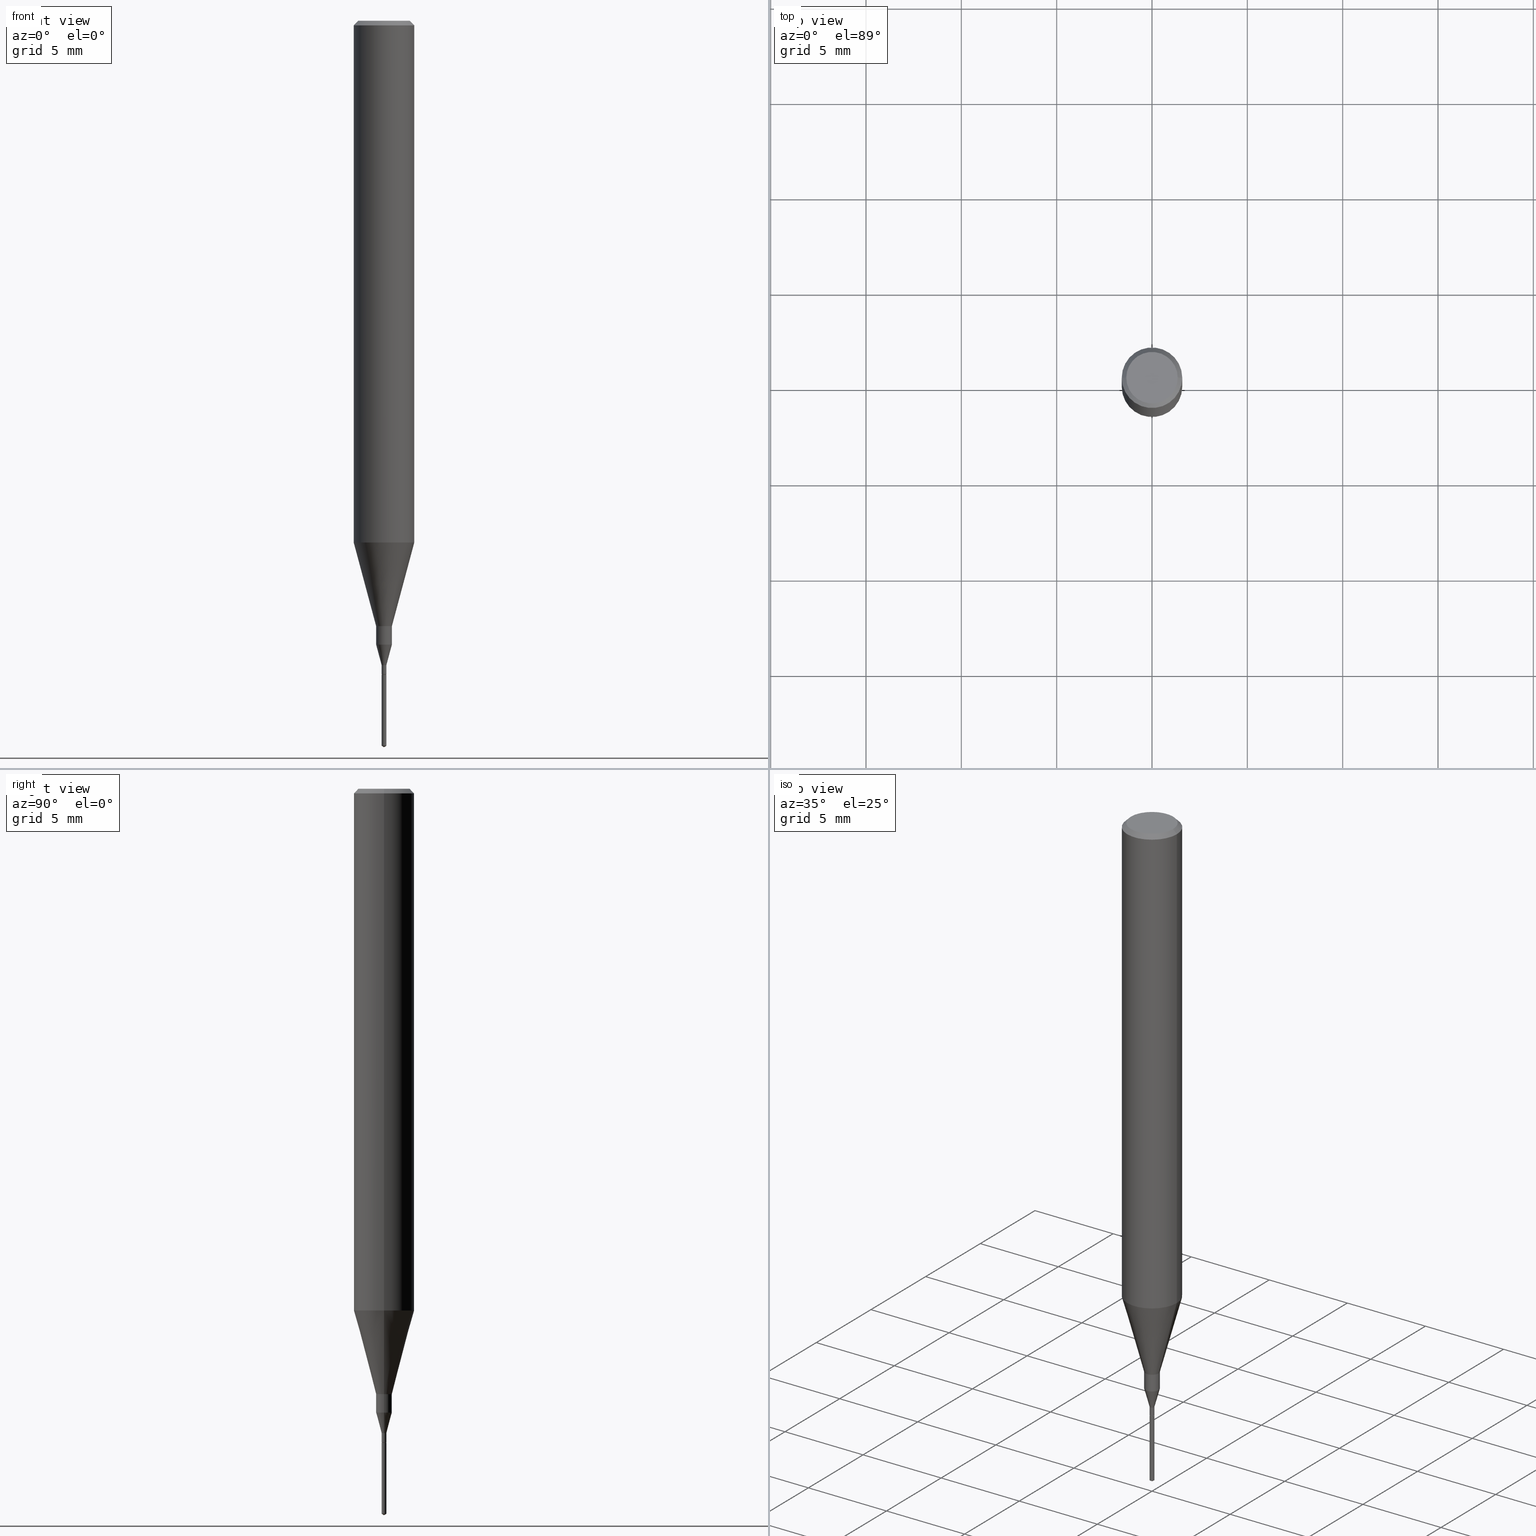
[diagram: canonical four-view strip — front | top / right | iso, engineering-drawing reading convention]
A machine part, canonical four-view strip (front | top / right | iso — engineering-drawing reading convention). The complete STEP part file that produces these views, byte-faithful:
ISO-10303-21;
HEADER;
FILE_DESCRIPTION (( 'STEP AP203' ),
    '1' );
FILE_NAME ('07114.STEP',
    '2024-04-19T13:30:05',
    ( '' ),
    ( '' ),
    'SwSTEP 2.0',
    'SolidWorks 2023',
    '' );
FILE_SCHEMA (( 'CONFIG_CONTROL_DESIGN' ));
ENDSEC;

DATA;
#1 = ORIENTED_EDGE ( 'NONE', *, *, #220, .T. ) ;
#2 = EDGE_CURVE ( 'NONE', #264, #329, #456, .T. ) ;
#3 = VERTEX_POINT ( 'NONE', #502 ) ;
#4 = CARTESIAN_POINT ( 'NONE',  ( 0.004900000000000000709, -3.421651712066270871E-17, 2.389326620140008703E-31 ) ) ;
#5 = EDGE_CURVE ( 'NONE', #267, #574, #358, .T. ) ;
#6 = FACE_OUTER_BOUND ( 'NONE', #71, .T. ) ;
#7 = CIRCLE ( 'NONE', #252, 0.004900000000000006781 ) ;
#8 = AXIS2_PLACEMENT_3D ( 'NONE', #385, #154, #187 ) ;
#9 = ADVANCED_FACE ( 'NONE', ( #288 ), #73, .T. ) ;
#10 = FACE_OUTER_BOUND ( 'NONE', #459, .T. ) ;
#11 = FACE_OUTER_BOUND ( 'NONE', #256, .T. ) ;
#12 = APPROVAL_STATUS ( 'not_yet_approved' ) ;
#13 = DIRECTION ( 'NONE',  ( -1.000000000000000000, 6.982962677686266711E-15, 0.000000000000000000 ) ) ;
#14 = SECURITY_CLASSIFICATION ( '', '', #268 ) ;
#15 = DIRECTION ( 'NONE',  ( -2.445468806185136597E-29, 3.491481338843145583E-15, 1.000000000000000000 ) ) ;
#16 = CARTESIAN_POINT ( 'NONE',  ( 3.661644357639227477E-29, -5.226024181502583306E-15, -1.497055782966765225 ) ) ;
#17 = CARTESIAN_POINT ( 'NONE',  ( 0.004399999999999999398, -4.744224843220065847E-15, -1.350000000000000089 ) ) ;
#18 = EDGE_LOOP ( 'NONE', ( #168, #505 ) ) ;
#19 = VECTOR ( 'NONE', #525, 39.37007874015748143 ) ;
#20 = APPLICATION_PROTOCOL_DEFINITION ( 'international standard', 'config_control_design', 1994, #276 ) ;
#21 = CARTESIAN_POINT ( 'NONE',  ( 3.149864632744068041E-29, -4.497171894931683975E-15, -1.288041223334093432 ) ) ;
#22 = ORIENTED_EDGE ( 'NONE', *, *, #393, .T. ) ;
#23 = EDGE_CURVE ( 'NONE', #304, #586, #7, .T. ) ;
#24 = CYLINDRICAL_SURFACE ( 'NONE', #451, 0.01624999999999999709 ) ;
#25 = VERTEX_POINT ( 'NONE', #337 ) ;
#26 = CARTESIAN_POINT ( 'NONE',  ( 3.149864632744068041E-29, -4.497171894931683975E-15, -1.288041223334093432 ) ) ;
#27 = APPROVAL_ROLE ( '' ) ;
#28 = PLANE ( 'NONE',  #491 ) ;
#29 = ORIENTED_EDGE ( 'NONE', *, *, #319, .T. ) ;
#30 = LOCAL_TIME ( 9, 30, 5.000000000000000000, #107 ) ;
#31 = CIRCLE ( 'NONE', #372, 0.01624999999999999709 ) ;
#32 = CARTESIAN_POINT ( 'NONE',  ( 2.634730117954813298E-29, -3.761696332605275695E-15, -1.077392650149939346 ) ) ;
#33 = DIRECTION ( 'NONE',  ( -2.449828643397946418E-29, 3.485237803807878340E-15, 1.000000000000000000 ) ) ;
#34 = CC_DESIGN_DATE_AND_TIME_ASSIGNMENT ( #324, #571, ( #14 ) ) ;
#35 = EDGE_LOOP ( 'NONE', ( #172, #223, #463 ) ) ;
#36 = ADVANCED_FACE ( 'NONE', ( #553 ), #147, .T. ) ;
#37 = APPROVAL_PERSON_ORGANIZATION ( #132, #225, #174 ) ;
#38 = CARTESIAN_POINT ( 'NONE',  ( 0.000000000000000000, 0.000000000000000000, 0.000000000000000000 ) ) ;
#39 = PERSON_AND_ORGANIZATION_ROLE ( 'classification_officer' ) ;
#40 = AXIS2_PLACEMENT_3D ( 'NONE', #433, #527, #70 ) ;
#41 = ORIENTED_EDGE ( 'NONE', *, *, #340, .T. ) ;
#42 = ORIENTED_EDGE ( 'NONE', *, *, #425, .F. ) ;
#43 = EDGE_LOOP ( 'NONE', ( #353, #577, #522, #543 ) ) ;
#44 = CARTESIAN_POINT ( 'NONE',  ( 3.481659405227790456E-17, 0.004899999999995284863, -1.350000000000000089 ) ) ;
#45 = CLOSED_SHELL ( 'NONE', ( #410, #125, #98, #176, #369 ) ) ;
#46 = VECTOR ( 'NONE', #462, 39.37007874015747433 ) ;
#47 = EDGE_LOOP ( 'NONE', ( #94, #442, #295, #315 ) ) ;
#48 = CC_DESIGN_PERSON_AND_ORGANIZATION_ASSIGNMENT ( #519, #192, ( #375 ) ) ;
#49 = CARTESIAN_POINT ( 'NONE',  ( 3.056836007731421306E-29, -4.364351673553932471E-15, -1.250000000000000000 ) ) ;
#50 = VECTOR ( 'NONE', #350, 39.37007874015748143 ) ;
#51 = ADVANCED_FACE ( 'NONE', ( #431 ), #284, .T. ) ;
#52 = AXIS2_PLACEMENT_3D ( 'NONE', #26, #569, #529 ) ;
#53 = ORIENTED_EDGE ( 'NONE', *, *, #281, .F. ) ;
#54 = LOCAL_TIME ( 9, 30, 5.000000000000000000, #222 ) ;
#55 = LINE ( 'NONE', #234, #418 ) ;
#56 = LINE ( 'NONE', #427, #506 ) ;
#57 = DIRECTION ( 'NONE',  ( -2.445468806185136597E-29, 3.491481338843145583E-15, 1.000000000000000000 ) ) ;
#58 = ORIENTED_EDGE ( 'NONE', *, *, #211, .F. ) ;
#59 = DIRECTION ( 'NONE',  ( -2.445468806185136597E-29, 3.491481338843145583E-15, 1.000000000000000000 ) ) ;
#60 = AXIS2_PLACEMENT_3D ( 'NONE', #481, #33, #161 ) ;
#61 = FACE_OUTER_BOUND ( 'NONE', #405, .T. ) ;
#62 = CARTESIAN_POINT ( 'NONE',  ( -9.278108940561071411E-28, 1.319778012860802633E-13, 37.87007874015748143 ) ) ;
#63 = CALENDAR_DATE ( 2024, 19, 4 ) ;
#64 = DIRECTION ( 'NONE',  ( -6.982962677686265922E-15, -1.000000000000000000, 0.000000000000000000 ) ) ;
#65 = CARTESIAN_POINT ( 'NONE',  ( 0.004900000000000006781, -4.745970583889488140E-15, -1.349500000000000144 ) ) ;
#66 = ORIENTED_EDGE ( 'NONE', *, *, #243, .F. ) ;
#67 = CYLINDRICAL_SURFACE ( 'NONE', #538, 0.004900000000000000709 ) ;
#68 = DIRECTION ( 'NONE',  ( 1.000000000000000000, -6.982962677686264344E-15, 0.000000000000000000 ) ) ;
#69 = CARTESIAN_POINT ( 'NONE',  ( 3.301382888349935078E-29, -4.713499807438246596E-15, -1.350000000000000089 ) ) ;
#70 = DIRECTION ( 'NONE',  ( 1.000000000000000000, -6.982962677686202813E-15, 0.000000000000000000 ) ) ;
#71 = EDGE_LOOP ( 'NONE', ( #66, #545, #78, #326 ) ) ;
#72 = EDGE_CURVE ( 'NONE', #540, #25, #201, .T. ) ;
#73 = CONICAL_SURFACE ( 'NONE', #478, 0.004399999999999999398, 0.7853981633975566368 ) ;
#74 = CIRCLE ( 'NONE', #40, 0.004899999999999993770 ) ;
#75 = DIRECTION ( 'NONE',  ( -2.438088387897960049E-29, 3.491481338843145188E-15, 1.000000000000000000 ) ) ;
#76 = CARTESIAN_POINT ( 'NONE',  ( 3.149864632744068041E-29, -4.497171894931683975E-15, -1.288041223334093432 ) ) ;
#77 = EDGE_CURVE ( 'NONE', #25, #540, #582, .T. ) ;
#78 = ORIENTED_EDGE ( 'NONE', *, *, #189, .T. ) ;
#79 = FACE_OUTER_BOUND ( 'NONE', #371, .T. ) ;
#80 = DIRECTION ( 'NONE',  ( 1.000000000000000000, 0.000000000000000000, 0.000000000000000000 ) ) ;
#81 = LINE ( 'NONE', #406, #583 ) ;
#82 = VERTEX_POINT ( 'NONE', #149 ) ;
#83 = DIRECTION ( 'NONE',  ( 6.090539988449850222E-15, 0.8571673007021241020, 0.5150380749100342825 ) ) ;
#84 = ORIENTED_EDGE ( 'NONE', *, *, #336, .T. ) ;
#85 = CONICAL_SURFACE ( 'NONE', #8, 65.52281426577134482, 1.029744258676674074 ) ;
#86 = ORIENTED_EDGE ( 'NONE', *, *, #23, .F. ) ;
#87 = CARTESIAN_POINT ( 'NONE',  ( 3.674742965096920047E-29, -5.227856705711817904E-15, -1.500000000000000222 ) ) ;
#88 = CALENDAR_DATE ( 2024, 19, 4 ) ;
#89 = VECTOR ( 'NONE', #370, 39.37007874015748854 ) ;
#90 = PERSON_AND_ORGANIZATION ( #584, #432 ) ;
#91 = ORIENTED_EDGE ( 'NONE', *, *, #376, .T. ) ;
#92 = ADVANCED_FACE ( 'NONE', ( #199 ), #547, .T. ) ;
#93 = APPROVAL_DATE_TIME ( #110, #534 ) ;
#94 = ORIENTED_EDGE ( 'NONE', *, *, #112, .T. ) ;
#95 = CIRCLE ( 'NONE', #122, 0.01625000000000000056 ) ;
#96 = EDGE_LOOP ( 'NONE', ( #482, #117, #270, #180 ) ) ;
#97 = DESIGN_CONTEXT ( 'detailed design', #261, 'design' ) ;
#98 = ADVANCED_FACE ( 'NONE', ( #550 ), #279, .T. ) ;
#99 = ORIENTED_EDGE ( 'NONE', *, *, #194, .T. ) ;
#100 = LINE ( 'NONE', #4, #131 ) ;
#101 = ORIENTED_EDGE ( 'NONE', *, *, #376, .F. ) ;
#102 = DIRECTION ( 'NONE',  ( -2.449828643397946418E-29, 3.485237803807878340E-15, 1.000000000000000000 ) ) ;
#103 = CC_DESIGN_PERSON_AND_ORGANIZATION_ASSIGNMENT ( #580, #454, ( #126 ) ) ;
#104 = DIRECTION ( 'NONE',  ( 1.000000000000000000, -6.982962677686266711E-15, 4.876176775795935793E-29 ) ) ;
#105 = CARTESIAN_POINT ( 'NONE',  ( 2.634730117954813298E-29, -3.761696332605275695E-15, -1.077392650149939346 ) ) ;
#106 = CARTESIAN_POINT ( 'NONE',  ( 2.292627005798580186E-31, -3.273263755165469568E-17, -0.009375000000000058634 ) ) ;
#107 = COORDINATED_UNIVERSAL_TIME_OFFSET ( 5, 0, .BEHIND. ) ;
#108 = DIRECTION ( 'NONE',  ( -2.445468806185136597E-29, 3.491481338843145583E-15, 1.000000000000000000 ) ) ;
#109 = CARTESIAN_POINT ( 'NONE',  ( -0.05312499999999999861, 3.873362110279099094E-16, -5.787680772773044021E-18 ) ) ;
#110 = DATE_AND_TIME ( #63, #30 ) ;
#111 = DIRECTION ( 'NONE',  ( 1.000000000000000000, -6.982962677686265922E-15, 4.876176775795935232E-29 ) ) ;
#112 = EDGE_CURVE ( 'NONE', #114, #476, #31, .T. ) ;
#113 = CARTESIAN_POINT ( 'NONE',  ( 3.301382888349935078E-29, -4.713499807438246596E-15, -1.350000000000000089 ) ) ;
#114 = VERTEX_POINT ( 'NONE', #151 ) ;
#115 = DIRECTION ( 'NONE',  ( -2.445468806185136597E-29, 3.491481338843145583E-15, 1.000000000000000000 ) ) ;
#116 = DIRECTION ( 'NONE',  ( 1.000000000000000000, -6.982962677686289588E-15, 0.000000000000000000 ) ) ;
#117 = ORIENTED_EDGE ( 'NONE', *, *, #197, .T. ) ;
#118 = CLOSED_SHELL ( 'NONE', ( #36, #289, #399, #327, #494, #92, #133, #581, #9, #416, #461, #495, #551, #51, #157, #466 ) ) ;
#119 = CARTESIAN_POINT ( 'NONE',  ( 0.000000000000000000, 0.000000000000000000, 0.000000000000000000 ) ) ;
#120 =( CONVERSION_BASED_UNIT ( 'INCH', #429 ) LENGTH_UNIT ( ) NAMED_UNIT ( #500 ) );
#121 = CARTESIAN_POINT ( 'NONE',  ( 3.481659405228152839E-17, 0.004899999999995285731, -1.350000000000000089 ) ) ;
#122 = AXIS2_PLACEMENT_3D ( 'NONE', #21, #294, #170 ) ;
#123 = DIRECTION ( 'NONE',  ( -2.449828643397946418E-29, 3.485237803807878340E-15, 1.000000000000000000 ) ) ;
#124 = EDGE_LOOP ( 'NONE', ( #397, #488, #140, #218 ) ) ;
#125 = ADVANCED_FACE ( 'NONE', ( #10 ), #85, .T. ) ;
#126 = PRODUCT_DEFINITION_FORMATION_WITH_SPECIFIED_SOURCE ( 'ANY', '', #136, .NOT_KNOWN. ) ;
#127 = DIRECTION ( 'NONE',  ( -1.000000000000000000, 6.982962677686265922E-15, -4.876176775795935793E-29 ) ) ;
#128 = DIRECTION ( 'NONE',  ( 2.449828643397946138E-29, -3.485237803807878340E-15, -1.000000000000000000 ) ) ;
#129 = EDGE_LOOP ( 'NONE', ( #42, #22, #99, #53 ) ) ;
#130 = VERTEX_POINT ( 'NONE', #246 ) ;
#131 = VECTOR ( 'NONE', #232, 39.37007874015748143 ) ;
#132 = PERSON_AND_ORGANIZATION ( #584, #432 ) ;
#133 = ADVANCED_FACE ( 'NONE', ( #474 ), #287, .T. ) ;
#134 = AXIS2_PLACEMENT_3D ( 'NONE', #228, #123, #310 ) ;
#135 = ORIENTED_EDGE ( 'NONE', *, *, #539, .F. ) ;
#136 = PRODUCT ( '07114', '07114', '', ( #356 ) ) ;
#137 = ORIENTED_EDGE ( 'NONE', *, *, #77, .T. ) ;
#138 = LINE ( 'NONE', #44, #422 ) ;
#139 = ADVANCED_BREP_SHAPE_REPRESENTATION ( '07114', ( #210, #587, #275 ), #532 ) ;
#140 = ORIENTED_EDGE ( 'NONE', *, *, #5, .F. ) ;
#141 = CC_DESIGN_PERSON_AND_ORGANIZATION_ASSIGNMENT ( #90, #486, ( #126 ) ) ;
#142 = DIRECTION ( 'NONE',  ( -2.445468806185136597E-29, 3.491481338843145583E-15, 1.000000000000000000 ) ) ;
#143 = AXIS2_PLACEMENT_3D ( 'NONE', #322, #585, #335 ) ;
#144 = ORIENTED_EDGE ( 'NONE', *, *, #453, .T. ) ;
#145 = DIRECTION ( 'NONE',  ( -2.445468806185136597E-29, 3.491481338843145583E-15, 1.000000000000000000 ) ) ;
#146 = EDGE_CURVE ( 'NONE', #476, #373, #55, .T. ) ;
#147 = CONICAL_SURFACE ( 'NONE', #221, 0.06250000000000000000, 0.7853981633974456145 ) ;
#148 = AXIS2_PLACEMENT_3D ( 'NONE', #345, #558, #190 ) ;
#149 = CARTESIAN_POINT ( 'NONE',  ( 0.004399999999999999398, -4.744224843220065847E-15, -1.350000000000000089 ) ) ;
#150 = CARTESIAN_POINT ( 'NONE',  ( 3.301382888349935078E-29, -4.713499807438246596E-15, -1.350000000000000089 ) ) ;
#151 = CARTESIAN_POINT ( 'NONE',  ( 0.01624999999999999709, -4.477824817066334148E-15, -1.250000000000000000 ) ) ;
#152 = CARTESIAN_POINT ( 'NONE',  ( -0.01624999999999999709, -4.315298589681791643E-15, -1.250000000000000000 ) ) ;
#153 = DATE_AND_TIME ( #552, #293 ) ;
#154 = DIRECTION ( 'NONE',  ( -2.449828643397946418E-29, 3.485237803807878340E-15, 1.000000000000000000 ) ) ;
#155 = LINE ( 'NONE', #283, #555 ) ;
#156 = AXIS2_PLACEMENT_3D ( 'NONE', #62, #193, #348 ) ;
#157 = ADVANCED_FACE ( 'NONE', ( #6 ), #229, .T. ) ;
#158 = AXIS2_PLACEMENT_3D ( 'NONE', #421, #509, #166 ) ;
#159 = PERSON_AND_ORGANIZATION ( #584, #432 ) ;
#160 = DIRECTION ( 'NONE',  ( -0.2588190451025214611, 5.211531920934551042E-15, 0.9659258262890682012 ) ) ;
#161 = DIRECTION ( 'NONE',  ( -6.982962677686265922E-15, -1.000000000000000000, 0.000000000000000000 ) ) ;
#162 = CIRCLE ( 'NONE', #143, 0.06250000000000012490 ) ;
#163 = ORIENTED_EDGE ( 'NONE', *, *, #177, .T. ) ;
#164 = CARTESIAN_POINT ( 'NONE',  ( -0.01625000000000000056, -4.381708700370667790E-15, -1.288041223334093432 ) ) ;
#165 = ORIENTED_EDGE ( 'NONE', *, *, #112, .F. ) ;
#166 = DIRECTION ( 'NONE',  ( -6.982962677686265922E-15, -1.000000000000000000, 0.000000000000000000 ) ) ;
#167 = CARTESIAN_POINT ( 'NONE',  ( -0.01625000000000000056, -4.381708700370667790E-15, -1.288041223334093432 ) ) ;
#168 = ORIENTED_EDGE ( 'NONE', *, *, #542, .T. ) ;
#169 = CARTESIAN_POINT ( 'NONE',  ( -0.01624999999999999709, 1.154631945610162595E-16, -7.993269521664220284E-31 ) ) ;
#170 = DIRECTION ( 'NONE',  ( 1.000000000000000000, -6.982962677686258033E-15, 0.000000000000000000 ) ) ;
#171 = VECTOR ( 'NONE', #309, 39.37007874015748854 ) ;
#172 = ORIENTED_EDGE ( 'NONE', *, *, #233, .F. ) ;
#173 = ORIENTED_EDGE ( 'NONE', *, *, #211, .T. ) ;
#174 = APPROVAL_ROLE ( '' ) ;
#175 = AXIS2_PLACEMENT_3D ( 'NONE', #106, #191, #250 ) ;
#176 = ADVANCED_FACE ( 'NONE', ( #379 ), #292, .T. ) ;
#177 = EDGE_CURVE ( 'NONE', #528, #82, #202, .T. ) ;
#178 = EDGE_LOOP ( 'NONE', ( #91, #450, #86, #568 ) ) ;
#179 = CARTESIAN_POINT ( 'NONE',  ( -0.004399999999999999398, -4.682235927064802475E-15, -1.350000000000000089 ) ) ;
#180 = ORIENTED_EDGE ( 'NONE', *, *, #578, .F. ) ;
#181 = APPROVAL ( #12, 'UNSPECIFIED' ) ;
#182 = EDGE_CURVE ( 'NONE', #130, #203, #386, .T. ) ;
#183 = AXIS2_PLACEMENT_3D ( 'NONE', #69, #517, #378 ) ;
#184 = ORIENTED_EDGE ( 'NONE', *, *, #539, .T. ) ;
#185 = DIRECTION ( 'NONE',  ( -2.445468806185136597E-29, 3.491481338843145583E-15, 1.000000000000000000 ) ) ;
#186 = ORIENTED_EDGE ( 'NONE', *, *, #317, .F. ) ;
#187 = DIRECTION ( 'NONE',  ( -6.982962677686265133E-15, -1.000000000000000000, 3.468864327941439992E-15 ) ) ;
#188 = CARTESIAN_POINT ( 'NONE',  ( 0.01625000000000000056, -4.610645038444085651E-15, -1.288041223334093432 ) ) ;
#189 = EDGE_CURVE ( 'NONE', #264, #574, #155, .T. ) ;
#190 = DIRECTION ( 'NONE',  ( -1.000000000000000000, 6.982962677686266711E-15, 0.000000000000000000 ) ) ;
#191 = DIRECTION ( 'NONE',  ( -2.445468806185136597E-29, 3.491481338843145583E-15, 1.000000000000000000 ) ) ;
#192 = PERSON_AND_ORGANIZATION_ROLE ( 'creator' ) ;
#193 = DIRECTION ( 'NONE',  ( -2.449828643397946418E-29, 3.485237803807878340E-15, 1.000000000000000000 ) ) ;
#194 = EDGE_CURVE ( 'NONE', #304, #130, #100, .T. ) ;
#195 = CONICAL_SURFACE ( 'NONE', #402, 0.06250000000000012490, 0.2617993877991501295 ) ;
#196 = FACE_OUTER_BOUND ( 'NONE', #277, .T. ) ;
#197 = EDGE_CURVE ( 'NONE', #476, #114, #536, .T. ) ;
#198 =( LENGTH_UNIT ( ) NAMED_UNIT ( * ) SI_UNIT ( $, .METRE. ) );
#199 = FACE_OUTER_BOUND ( 'NONE', #299, .T. ) ;
#200 = CARTESIAN_POINT ( 'NONE',  ( 1.415359278996747967E-46, -2.020757941330909984E-32, -5.787680772770392401E-18 ) ) ;
#201 = CIRCLE ( 'NONE', #278, 0.004899999999999998107 ) ;
#202 = CIRCLE ( 'NONE', #489, 0.004399999999999999398 ) ;
#203 = VERTEX_POINT ( 'NONE', #188 ) ;
#204 = CIRCLE ( 'NONE', #238, 0.004900000000000006781 ) ;
#205 = CARTESIAN_POINT ( 'NONE',  ( -0.004900000000000000709, 3.481659405224491415E-17, -2.410278194224904143E-31 ) ) ;
#206 = PERSON_AND_ORGANIZATION_ROLE ( 'design_owner' ) ;
#207 = DIRECTION ( 'NONE',  ( -2.445468806185136597E-29, 3.491481338843145583E-15, 1.000000000000000000 ) ) ;
#208 = CONICAL_SURFACE ( 'NONE', #52, 0.01625000000000000056, 0.2617993877991500740 ) ;
#209 = ORIENTED_EDGE ( 'NONE', *, *, #514, .T. ) ;
#210 = MANIFOLD_SOLID_BREP ( 'Body-Move/Copy2[1]', #45 ) ;
#211 = EDGE_CURVE ( 'NONE', #203, #114, #56, .T. ) ;
#212 = LINE ( 'NONE', #258, #575 ) ;
#213 = ORIENTED_EDGE ( 'NONE', *, *, #72, .F. ) ;
#214 = DIRECTION ( 'NONE',  ( 1.000000000000000000, -6.982962677686267499E-15, 4.876176775795936353E-29 ) ) ;
#215 = ORIENTED_EDGE ( 'NONE', *, *, #286, .F. ) ;
#216 = DIRECTION ( 'NONE',  ( -0.2588190451025213501, 5.211531920934551042E-15, 0.9659258262890682012 ) ) ;
#217 = AXIS2_PLACEMENT_3D ( 'NONE', #563, #484, #251 ) ;
#218 = ORIENTED_EDGE ( 'NONE', *, *, #220, .F. ) ;
#219 = CC_DESIGN_APPROVAL ( #181, ( #375 ) ) ;
#220 = EDGE_CURVE ( 'NONE', #260, #267, #448, .T. ) ;
#221 = AXIS2_PLACEMENT_3D ( 'NONE', #507, #465, #13 ) ;
#222 = COORDINATED_UNIVERSAL_TIME_OFFSET ( 5, 0, .BEHIND. ) ;
#223 = ORIENTED_EDGE ( 'NONE', *, *, #351, .T. ) ;
#224 = DIRECTION ( 'NONE',  ( -2.449828643397946418E-29, 3.485237803807878340E-15, 1.000000000000000000 ) ) ;
#225 = APPROVAL ( #262, 'UNSPECIFIED' ) ;
#226 = ORIENTED_EDGE ( 'NONE', *, *, #470, .F. ) ;
#227 = ORIENTED_EDGE ( 'NONE', *, *, #514, .F. ) ;
#228 = CARTESIAN_POINT ( 'NONE',  ( 3.301382888349935078E-29, -4.713499807438246596E-15, -1.350000000000000089 ) ) ;
#229 = CONICAL_SURFACE ( 'NONE', #148, 0.06250000000000000000, 0.7853981633974456145 ) ;
#230 = AXIS2_PLACEMENT_3D ( 'NONE', #38, #316, #579 ) ;
#231 = EDGE_LOOP ( 'NONE', ( #135, #137, #209, #215 ) ) ;
#232 = DIRECTION ( 'NONE',  ( -2.445468806185136877E-29, 3.491481338843145188E-15, 1.000000000000000000 ) ) ;
#233 = EDGE_CURVE ( 'NONE', #497, #25, #404, .T. ) ;
#234 = CARTESIAN_POINT ( 'NONE',  ( -0.06250000000000012490, -3.317607122755211895E-15, -1.077392650149939346 ) ) ;
#235 = CARTESIAN_POINT ( 'NONE',  ( 0.01625000000000000056, -4.610645038444085651E-15, -1.288041223334093432 ) ) ;
#236 = CARTESIAN_POINT ( 'NONE',  ( 2.634730117954813298E-29, -3.761696332605275695E-15, -1.077392650149939346 ) ) ;
#237 = DIRECTION ( 'NONE',  ( 1.000000000000000000, -6.982962677686289588E-15, 0.000000000000000000 ) ) ;
#238 = AXIS2_PLACEMENT_3D ( 'NONE', #357, #265, #338 ) ;
#239 = AXIS2_PLACEMENT_3D ( 'NONE', #200, #207, #390 ) ;
#240 = DIRECTION ( 'NONE',  ( 1.000000000000000000, -6.982962677686266711E-15, 0.000000000000000000 ) ) ;
#241 = DIRECTION ( 'NONE',  ( 1.000000000000000000, -6.982962677686265922E-15, 4.876176775795935793E-29 ) ) ;
#242 = DIRECTION ( 'NONE',  ( 1.000000000000000000, -6.982962677686288799E-15, 0.000000000000000000 ) ) ;
#243 = EDGE_CURVE ( 'NONE', #329, #267, #81, .T. ) ;
#244 = FACE_OUTER_BOUND ( 'NONE', #331, .T. ) ;
#245 = COORDINATED_UNIVERSAL_TIME_OFFSET ( 5, 0, .BEHIND. ) ;
#246 = CARTESIAN_POINT ( 'NONE',  ( 0.004899999999999993770, -4.679283290317583548E-15, -1.330400000000000027 ) ) ;
#247 = LINE ( 'NONE', #17, #171 ) ;
#248 = DIRECTION ( 'NONE',  ( 1.000000000000000000, -6.982962677686265922E-15, 4.876176775795935232E-29 ) ) ;
#249 = PLANE ( 'NONE',  #342 ) ;
#250 = DIRECTION ( 'NONE',  ( 1.000000000000000000, -6.982962677686266711E-15, 0.000000000000000000 ) ) ;
#251 = DIRECTION ( 'NONE',  ( 1.000000000000000000, -6.982962677686266711E-15, 4.876176775795935793E-29 ) ) ;
#252 = AXIS2_PLACEMENT_3D ( 'NONE', #341, #108, #382 ) ;
#253 = AXIS2_PLACEMENT_3D ( 'NONE', #471, #548, #64 ) ;
#254 = ORIENTED_EDGE ( 'NONE', *, *, #566, .T. ) ;
#255 = DIRECTION ( 'NONE',  ( -2.445468806185136597E-29, 3.491481338843145583E-15, 1.000000000000000000 ) ) ;
#256 = EDGE_LOOP ( 'NONE', ( #359, #41 ) ) ;
#257 = CARTESIAN_POINT ( 'NONE',  ( 3.253451699748706005E-29, -4.645066773196920500E-15, -1.330400000000000027 ) ) ;
#258 = CARTESIAN_POINT ( 'NONE',  ( 3.662971404622334007E-29, -5.244714250307038079E-15, -1.500000000000000222 ) ) ;
#259 = LINE ( 'NONE', #449, #464 ) ;
#260 = VERTEX_POINT ( 'NONE', #475 ) ;
#261 = APPLICATION_CONTEXT ( 'configuration controlled 3d designs of mechanical parts and assemblies' ) ;
#262 = APPROVAL_STATUS ( 'not_yet_approved' ) ;
#263 = CARTESIAN_POINT ( 'NONE',  ( 3.674846187787069844E-29, -5.227856705711817904E-15, -1.500000000000000222 ) ) ;
#264 = VERTEX_POINT ( 'NONE', #109 ) ;
#265 = DIRECTION ( 'NONE',  ( -2.445468806185136597E-29, 3.491481338843145583E-15, 1.000000000000000000 ) ) ;
#266 = CC_DESIGN_DATE_AND_TIME_ASSIGNMENT ( #153, #344, ( #375 ) ) ;
#267 = VERTEX_POINT ( 'NONE', #572 ) ;
#268 = SECURITY_CLASSIFICATION_LEVEL ( 'unclassified' ) ;
#269 = PERSON_AND_ORGANIZATION ( #584, #432 ) ;
#270 = ORIENTED_EDGE ( 'NONE', *, *, #365, .T. ) ;
#271 = AXIS2_PLACEMENT_3D ( 'NONE', #590, #142, #332 ) ;
#272 = ORIENTED_EDGE ( 'NONE', *, *, #453, .F. ) ;
#273 = CC_DESIGN_APPROVAL ( #534, ( #126 ) ) ;
#274 = DIRECTION ( 'NONE',  ( 1.000000000000000000, -6.982962677686264344E-15, 0.000000000000000000 ) ) ;
#275 = AXIS2_PLACEMENT_3D ( 'NONE', #400, #565, #80 ) ;
#276 = APPLICATION_CONTEXT ( 'configuration controlled 3d designs of mechanical parts and assemblies' ) ;
#277 = EDGE_LOOP ( 'NONE', ( #254, #29, #455, #415 ) ) ;
#278 = AXIS2_PLACEMENT_3D ( 'NONE', #468, #339, #520 ) ;
#279 = CONICAL_SURFACE ( 'NONE', #156, 65.52281426577134482, 1.029744258676674074 ) ;
#280 = EDGE_LOOP ( 'NONE', ( #318, #184, #485, #227 ) ) ;
#281 = EDGE_CURVE ( 'NONE', #3, #130, #74, .T. ) ;
#282 = CARTESIAN_POINT ( 'NONE',  ( 3.056836007731421306E-29, -4.364351673553932471E-15, -1.250000000000000000 ) ) ;
#283 = CARTESIAN_POINT ( 'NONE',  ( -0.06250000000000000000, 4.037025298037369984E-16, -0.009375000000000058634 ) ) ;
#284 = CYLINDRICAL_SURFACE ( 'NONE', #535, 0.06250000000000006939 ) ;
#285 = AXIS2_PLACEMENT_3D ( 'NONE', #105, #115, #480 ) ;
#286 = EDGE_CURVE ( 'NONE', #363, #524, #492, .T. ) ;
#287 = CONICAL_SURFACE ( 'NONE', #183, 0.004399999999999999398, 0.7853981633975566368 ) ;
#288 = FACE_OUTER_BOUND ( 'NONE', #423, .T. ) ;
#289 = ADVANCED_FACE ( 'NONE', ( #446 ), #487, .T. ) ;
#290 = VECTOR ( 'NONE', #349, 39.37007874015747433 ) ;
#291 = FACE_OUTER_BOUND ( 'NONE', #129, .T. ) ;
#292 = CYLINDRICAL_SURFACE ( 'NONE', #253, 0.004899999999999998107 ) ;
#293 = LOCAL_TIME ( 9, 30, 5.000000000000000000, #245 ) ;
#294 = DIRECTION ( 'NONE',  ( -2.445468806185136597E-29, 3.491481338843145583E-15, 1.000000000000000000 ) ) ;
#295 = ORIENTED_EDGE ( 'NONE', *, *, #508, .F. ) ;
#296 = LOCAL_TIME ( 9, 30, 5.000000000000000000, #367 ) ;
#297 = CARTESIAN_POINT ( 'NONE',  ( 0.000000000000000000, 0.000000000000000000, 0.000000000000000000 ) ) ;
#298 = DIRECTION ( 'NONE',  ( -5.985567269336014644E-15, -0.8571673007021206603, 0.5150380749100403888 ) ) ;
#299 = EDGE_LOOP ( 'NONE', ( #544, #531, #334, #533 ) ) ;
#300 = COORDINATED_UNIVERSAL_TIME_OFFSET ( 5, 0, .BEHIND. ) ;
#301 = DIRECTION ( 'NONE',  ( -2.445468806185136877E-29, 3.491481338843145188E-15, 1.000000000000000000 ) ) ;
#302 = AXIS2_PLACEMENT_3D ( 'NONE', #16, #102, #426 ) ;
#303 = AXIS2_PLACEMENT_3D ( 'NONE', #49, #145, #424 ) ;
#304 = VERTEX_POINT ( 'NONE', #65 ) ;
#305 = EDGE_CURVE ( 'NONE', #203, #377, #307, .T. ) ;
#306 = LINE ( 'NONE', #169, #50 ) ;
#307 = CIRCLE ( 'NONE', #380, 0.01625000000000000056 ) ;
#308 =( NAMED_UNIT ( * ) PLANE_ANGLE_UNIT ( ) SI_UNIT ( $, .RADIAN. ) );
#309 = DIRECTION ( 'NONE',  ( 0.7071067811866240671, -2.468850131083058938E-15, 0.7071067811864708563 ) ) ;
#310 = DIRECTION ( 'NONE',  ( -6.982962677686265922E-15, -1.000000000000000000, 0.000000000000000000 ) ) ;
#311 = ORIENTED_EDGE ( 'NONE', *, *, #351, .F. ) ;
#312 = PLANE ( 'NONE',  #394 ) ;
#313 = CALENDAR_DATE ( 2024, 19, 4 ) ;
#314 = DIRECTION ( 'NONE',  ( -2.445468806185136877E-29, 3.491481338843145188E-15, 1.000000000000000000 ) ) ;
#315 = ORIENTED_EDGE ( 'NONE', *, *, #365, .F. ) ;
#316 = DIRECTION ( 'NONE',  ( -2.445468806185136597E-29, 3.491481338843145583E-15, 1.000000000000000000 ) ) ;
#317 = EDGE_CURVE ( 'NONE', #377, #203, #95, .T. ) ;
#318 = ORIENTED_EDGE ( 'NONE', *, *, #72, .T. ) ;
#319 = EDGE_CURVE ( 'NONE', #3, #377, #567, .T. ) ;
#320 = VECTOR ( 'NONE', #83, 39.37007874015748854 ) ;
#321 = CONICAL_SURFACE ( 'NONE', #573, 0.06250000000000012490, 0.2617993877991501295 ) ;
#322 = CARTESIAN_POINT ( 'NONE',  ( 2.634730117954813298E-29, -3.761696332605275695E-15, -1.077392650149939346 ) ) ;
#323 = CIRCLE ( 'NONE', #561, 0.06250000000000000000 ) ;
#324 = DATE_AND_TIME ( #88, #296 ) ;
#325 = PRODUCT_DEFINITION_SHAPE ( 'NONE', 'NONE',  #375 ) ;
#326 = ORIENTED_EDGE ( 'NONE', *, *, #470, .T. ) ;
#327 = ADVANCED_FACE ( 'NONE', ( #441 ), #24, .T. ) ;
#328 = CIRCLE ( 'NONE', #285, 0.06250000000000012490 ) ;
#329 = VERTEX_POINT ( 'NONE', #472 ) ;
#330 = DIRECTION ( 'NONE',  ( -2.449828643397946418E-29, 3.485237803807878340E-15, 1.000000000000000000 ) ) ;
#331 = EDGE_LOOP ( 'NONE', ( #272, #473, #173, #419 ) ) ;
#332 = DIRECTION ( 'NONE',  ( 1.000000000000000000, -6.982962677686266711E-15, 4.875930095424100059E-29 ) ) ;
#333 = FACE_OUTER_BOUND ( 'NONE', #280, .T. ) ;
#334 = ORIENTED_EDGE ( 'NONE', *, *, #566, .F. ) ;
#335 = DIRECTION ( 'NONE',  ( 1.000000000000000000, -6.982962677686264344E-15, 0.000000000000000000 ) ) ;
#336 = EDGE_CURVE ( 'NONE', #82, #304, #247, .T. ) ;
#337 = CARTESIAN_POINT ( 'NONE',  ( 3.481659405228151606E-17, 0.004899999999994773987, -1.497055782966765225 ) ) ;
#338 = DIRECTION ( 'NONE',  ( 1.000000000000000000, -6.982962677686184669E-15, 0.000000000000000000 ) ) ;
#339 = DIRECTION ( 'NONE',  ( -2.449828643397946418E-29, 3.485237803807878340E-15, 1.000000000000000000 ) ) ;
#340 = EDGE_CURVE ( 'NONE', #329, #264, #499, .T. ) ;
#341 = CARTESIAN_POINT ( 'NONE',  ( 3.300160153946842277E-29, -4.711754066768825092E-15, -1.349500000000000144 ) ) ;
#342 = AXIS2_PLACEMENT_3D ( 'NONE', #436, #75, #241 ) ;
#343 = CARTESIAN_POINT ( 'NONE',  ( 3.149864632744068041E-29, -4.497171894931683975E-15, -1.288041223334093432 ) ) ;
#344 = DATE_TIME_ROLE ( 'creation_date' ) ;
#345 = CARTESIAN_POINT ( 'NONE',  ( 2.292627005798580186E-31, -3.273263755165469568E-17, -0.009375000000000058634 ) ) ;
#346 = CARTESIAN_POINT ( 'NONE',  ( 0.000000000000000000, 0.000000000000000000, 0.000000000000000000 ) ) ;
#347 = PERSON_AND_ORGANIZATION ( #584, #432 ) ;
#348 = DIRECTION ( 'NONE',  ( -6.982962677686265133E-15, -1.000000000000000000, 3.468864327941439992E-15 ) ) ;
#349 = DIRECTION ( 'NONE',  ( 0.2588190451025214611, 1.565188264969621573E-15, 0.9659258262890682012 ) ) ;
#350 = DIRECTION ( 'NONE',  ( -2.445468806185136877E-29, 3.491481338843145188E-15, 1.000000000000000000 ) ) ;
#351 = EDGE_CURVE ( 'NONE', #497, #540, #212, .T. ) ;
#352 = DIRECTION ( 'NONE',  ( 6.982962677686265922E-15, 1.000000000000000000, -3.485237803807878340E-15 ) ) ;
#353 = ORIENTED_EDGE ( 'NONE', *, *, #340, .F. ) ;
#354 = CC_DESIGN_APPROVAL ( #225, ( #14 ) ) ;
#355 = DIRECTION ( 'NONE',  ( -2.445468806185136597E-29, 3.491481338843145583E-15, 1.000000000000000000 ) ) ;
#356 = MECHANICAL_CONTEXT ( 'NONE', #276, 'mechanical' ) ;
#357 = CARTESIAN_POINT ( 'NONE',  ( 3.300160153946842277E-29, -4.711754066768825092E-15, -1.349500000000000144 ) ) ;
#358 = CIRCLE ( 'NONE', #175, 0.06250000000000000000 ) ;
#359 = ORIENTED_EDGE ( 'NONE', *, *, #2, .T. ) ;
#360 = AXIS2_PLACEMENT_3D ( 'NONE', #113, #523, #116 ) ;
#361 = DATE_AND_TIME ( #313, #54 ) ;
#362 = CARTESIAN_POINT ( 'NONE',  ( 3.301382888349935078E-29, -4.713499807438246596E-15, -1.350000000000000089 ) ) ;
#363 = VERTEX_POINT ( 'NONE', #121 ) ;
#364 = VECTOR ( 'NONE', #224, 39.37007874015748143 ) ;
#365 = EDGE_CURVE ( 'NONE', #114, #260, #559, .T. ) ;
#366 = EDGE_LOOP ( 'NONE', ( #490, #447, #1, #226 ) ) ;
#367 = COORDINATED_UNIVERSAL_TIME_OFFSET ( 5, 0, .BEHIND. ) ;
#368 = AXIS2_PLACEMENT_3D ( 'NONE', #297, #437, #111 ) ;
#369 = ADVANCED_FACE ( 'NONE', ( #396 ), #28, .F. ) ;
#370 = DIRECTION ( 'NONE',  ( -0.7071067811866240671, 7.493145998870630261E-15, 0.7071067811864708563 ) ) ;
#371 = EDGE_LOOP ( 'NONE', ( #439, #403, #452, #186 ) ) ;
#372 = AXIS2_PLACEMENT_3D ( 'NONE', #282, #430, #242 ) ;
#373 = VERTEX_POINT ( 'NONE', #521 ) ;
#374 = CARTESIAN_POINT ( 'NONE',  ( -0.004399999999999999398, -4.679586699890691274E-15, -1.350000000000000089 ) ) ;
#375 = PRODUCT_DEFINITION ( 'UNKNOWN', '', #126, #97 ) ;
#376 = EDGE_CURVE ( 'NONE', #82, #528, #391, .T. ) ;
#377 = VERTEX_POINT ( 'NONE', #167 ) ;
#378 = DIRECTION ( 'NONE',  ( 1.000000000000000000, -6.982962677686289588E-15, 0.000000000000000000 ) ) ;
#379 = FACE_OUTER_BOUND ( 'NONE', #231, .T. ) ;
#380 = AXIS2_PLACEMENT_3D ( 'NONE', #76, #255, #438 ) ;
#381 = CALENDAR_DATE ( 2024, 19, 4 ) ;
#382 = DIRECTION ( 'NONE',  ( 1.000000000000000000, -6.982962677686184669E-15, 0.000000000000000000 ) ) ;
#383 = CARTESIAN_POINT ( 'NONE',  ( 2.292627005798580186E-31, -3.273263755165469568E-17, -0.009375000000000058634 ) ) ;
#384 = DATE_AND_TIME ( #381, #407 ) ;
#385 = CARTESIAN_POINT ( 'NONE',  ( -9.278108940561071411E-28, 1.319778012860802633E-13, 37.87007874015748143 ) ) ;
#386 = LINE ( 'NONE', #235, #46 ) ;
#387 = CARTESIAN_POINT ( 'NONE',  ( 7.076796394983739835E-47, -1.010378970665454992E-32, -2.893840386385196200E-18 ) ) ;
#388 = DIRECTION ( 'NONE',  ( -2.445468806185136597E-29, 3.491481338843145583E-15, 1.000000000000000000 ) ) ;
#389 = CARTESIAN_POINT ( 'NONE',  ( 0.000000000000000000, 0.000000000000000000, 0.000000000000000000 ) ) ;
#390 = DIRECTION ( 'NONE',  ( 1.000000000000000000, -6.982962677686266711E-15, 4.875930095424100059E-29 ) ) ;
#391 = CIRCLE ( 'NONE', #360, 0.004399999999999999398 ) ;
#392 = ORIENTED_EDGE ( 'NONE', *, *, #537, .F. ) ;
#393 = EDGE_CURVE ( 'NONE', #586, #304, #204, .T. ) ;
#394 = AXIS2_PLACEMENT_3D ( 'NONE', #387, #477, #127 ) ;
#395 = APPLICATION_PROTOCOL_DEFINITION ( 'international standard', 'config_control_design', 1994, #261 ) ;
#396 = FACE_OUTER_BOUND ( 'NONE', #18, .T. ) ;
#397 = ORIENTED_EDGE ( 'NONE', *, *, #508, .T. ) ;
#398 = CIRCLE ( 'NONE', #134, 0.004899999999999999842 ) ;
#399 = ADVANCED_FACE ( 'NONE', ( #501 ), #321, .T. ) ;
#400 = CARTESIAN_POINT ( 'NONE',  ( 0.000000000000000000, 0.000000000000000000, 0.000000000000000000 ) ) ;
#401 = CARTESIAN_POINT ( 'NONE',  ( 0.06250000000000006939, -4.364351673553921624E-16, 3.047610484872463374E-30 ) ) ;
#402 = AXIS2_PLACEMENT_3D ( 'NONE', #32, #388, #68 ) ;
#403 = ORIENTED_EDGE ( 'NONE', *, *, #281, .T. ) ;
#404 = LINE ( 'NONE', #263, #320 ) ;
#405 = EDGE_LOOP ( 'NONE', ( #101, #408 ) ) ;
#406 = CARTESIAN_POINT ( 'NONE',  ( 0.06250000000000000000, -4.615137624123753937E-16, -0.009375000000000058634 ) ) ;
#407 = LOCAL_TIME ( 9, 30, 5.000000000000000000, #300 ) ;
#408 = ORIENTED_EDGE ( 'NONE', *, *, #177, .F. ) ;
#409 = APPROVAL_DATE_TIME ( #361, #225 ) ;
#410 = ADVANCED_FACE ( 'NONE', ( #333 ), #549, .T. ) ;
#411 = SHAPE_DEFINITION_REPRESENTATION ( #325, #139 ) ;
#412 = ORIENTED_EDGE ( 'NONE', *, *, #393, .F. ) ;
#413 = CARTESIAN_POINT ( 'NONE',  ( -3.421651712062968748E-17, -0.004900000000004713085, -1.350000000000000089 ) ) ;
#414 = DIRECTION ( 'NONE',  ( -2.445468806185136597E-29, 3.491481338843145583E-15, 1.000000000000000000 ) ) ;
#415 = ORIENTED_EDGE ( 'NONE', *, *, #182, .F. ) ;
#416 = ADVANCED_FACE ( 'NONE', ( #291 ), #67, .T. ) ;
#417 = CARTESIAN_POINT ( 'NONE',  ( -3.421651712062968132E-17, -0.004900000000004712218, -1.350000000000000089 ) ) ;
#418 = VECTOR ( 'NONE', #160, 39.37007874015747433 ) ;
#419 = ORIENTED_EDGE ( 'NONE', *, *, #197, .F. ) ;
#420 = AXIS2_PLACEMENT_3D ( 'NONE', #343, #515, #469 ) ;
#421 = CARTESIAN_POINT ( 'NONE',  ( 3.301382888349935078E-29, -4.713499807438246596E-15, -1.350000000000000089 ) ) ;
#422 = VECTOR ( 'NONE', #330, 39.37007874015748143 ) ;
#423 = EDGE_LOOP ( 'NONE', ( #392, #163, #84, #412 ) ) ;
#424 = DIRECTION ( 'NONE',  ( 1.000000000000000000, -6.982962677686288799E-15, 0.000000000000000000 ) ) ;
#425 = EDGE_CURVE ( 'NONE', #586, #3, #443, .T. ) ;
#426 = DIRECTION ( 'NONE',  ( -6.982962677686265922E-15, -1.000000000000000000, 0.000000000000000000 ) ) ;
#427 = CARTESIAN_POINT ( 'NONE',  ( 0.01624999999999999709, -1.134731435124018242E-16, 7.923787260668394963E-31 ) ) ;
#428 = DIRECTION ( 'NONE',  ( -2.445468806185136597E-29, 3.491481338843145583E-15, 1.000000000000000000 ) ) ;
#429 = LENGTH_MEASURE_WITH_UNIT ( LENGTH_MEASURE( 0.02539999999999999897 ), #198 );
#430 = DIRECTION ( 'NONE',  ( -2.445468806185136597E-29, 3.491481338843145583E-15, 1.000000000000000000 ) ) ;
#431 = FACE_OUTER_BOUND ( 'NONE', #366, .T. ) ;
#432 = ORGANIZATION ( 'UNSPECIFIED', 'UNSPECIFIED', '' ) ;
#433 = CARTESIAN_POINT ( 'NONE',  ( 3.253451699748706005E-29, -4.645066773196920500E-15, -1.330400000000000027 ) ) ;
#434 = CC_DESIGN_PERSON_AND_ORGANIZATION_ASSIGNMENT ( #269, #39, ( #14 ) ) ;
#435 = APPROVAL_PERSON_ORGANIZATION ( #347, #534, #516 ) ;
#436 = CARTESIAN_POINT ( 'NONE',  ( 3.301382888349935078E-29, -4.713499807438246596E-15, -1.350000000000000089 ) ) ;
#437 = DIRECTION ( 'NONE',  ( -2.445468806185136597E-29, 3.491481338843145583E-15, 1.000000000000000000 ) ) ;
#438 = DIRECTION ( 'NONE',  ( 1.000000000000000000, -6.982962677686258033E-15, 0.000000000000000000 ) ) ;
#439 = ORIENTED_EDGE ( 'NONE', *, *, #319, .F. ) ;
#440 = DIRECTION ( 'NONE',  ( 1.000000000000000000, -6.982962677686202813E-15, 0.000000000000000000 ) ) ;
#441 = FACE_OUTER_BOUND ( 'NONE', #588, .T. ) ;
#442 = ORIENTED_EDGE ( 'NONE', *, *, #146, .T. ) ;
#443 = LINE ( 'NONE', #205, #19 ) ;
#444 = PRODUCT_RELATED_PRODUCT_CATEGORY ( 'detail', '', ( #136 ) ) ;
#445 = PERSON_AND_ORGANIZATION ( #584, #432 ) ;
#446 = FACE_OUTER_BOUND ( 'NONE', #124, .T. ) ;
#447 = ORIENTED_EDGE ( 'NONE', *, *, #578, .T. ) ;
#448 = LINE ( 'NONE', #401, #479 ) ;
#449 = CARTESIAN_POINT ( 'NONE',  ( -0.06250000000000006939, 4.440892098500631092E-16, -3.074334431409319267E-30 ) ) ;
#450 = ORIENTED_EDGE ( 'NONE', *, *, #537, .T. ) ;
#451 = AXIS2_PLACEMENT_3D ( 'NONE', #346, #518, #214 ) ;
#452 = ORIENTED_EDGE ( 'NONE', *, *, #182, .T. ) ;
#453 = EDGE_CURVE ( 'NONE', #377, #476, #306, .T. ) ;
#454 = PERSON_AND_ORGANIZATION_ROLE ( 'design_supplier' ) ;
#455 = ORIENTED_EDGE ( 'NONE', *, *, #305, .F. ) ;
#456 = CIRCLE ( 'NONE', #271, 0.05312499999999999861 ) ;
#457 = VECTOR ( 'NONE', #216, 39.37007874015747433 ) ;
#458 = CC_DESIGN_PERSON_AND_ORGANIZATION_ASSIGNMENT ( #445, #206, ( #136 ) ) ;
#459 = EDGE_LOOP ( 'NONE', ( #311, #496, #213 ) ) ;
#460 = LINE ( 'NONE', #179, #89 ) ;
#461 = ADVANCED_FACE ( 'NONE', ( #79 ), #208, .T. ) ;
#462 = DIRECTION ( 'NONE',  ( 0.2588190451025213501, 1.565188264969621968E-15, 0.9659258262890682012 ) ) ;
#463 = ORIENTED_EDGE ( 'NONE', *, *, #77, .F. ) ;
#464 = VECTOR ( 'NONE', #483, 39.37007874015748143 ) ;
#465 = DIRECTION ( 'NONE',  ( 2.445468806185136597E-29, -3.491481338843145583E-15, -1.000000000000000000 ) ) ;
#466 = ADVANCED_FACE ( 'NONE', ( #11 ), #312, .F. ) ;
#467 = APPROVAL_DATE_TIME ( #384, #181 ) ;
#468 = CARTESIAN_POINT ( 'NONE',  ( 3.661644357639227477E-29, -5.226024181502583306E-15, -1.497055782966765225 ) ) ;
#469 = DIRECTION ( 'NONE',  ( 1.000000000000000000, -6.982962677686258033E-15, 0.000000000000000000 ) ) ;
#470 = EDGE_CURVE ( 'NONE', #574, #267, #323, .T. ) ;
#471 = CARTESIAN_POINT ( 'NONE',  ( 3.301382888349935078E-29, -4.713499807438246596E-15, -1.350000000000000089 ) ) ;
#472 = CARTESIAN_POINT ( 'NONE',  ( 0.05312499999999999861, -4.129888592719939842E-16, -5.787680772767651417E-18 ) ) ;
#473 = ORIENTED_EDGE ( 'NONE', *, *, #317, .T. ) ;
#474 = FACE_OUTER_BOUND ( 'NONE', #178, .T. ) ;
#475 = CARTESIAN_POINT ( 'NONE',  ( 0.06250000000000012490, -4.198131499960668153E-15, -1.077392650149939346 ) ) ;
#476 = VERTEX_POINT ( 'NONE', #152 ) ;
#477 = DIRECTION ( 'NONE',  ( 2.438088387897960049E-29, -3.491481338843145188E-15, -1.000000000000000000 ) ) ;
#478 = AXIS2_PLACEMENT_3D ( 'NONE', #512, #57, #237 ) ;
#479 = VECTOR ( 'NONE', #301, 39.37007874015748143 ) ;
#480 = DIRECTION ( 'NONE',  ( 1.000000000000000000, -6.982962677686264344E-15, 0.000000000000000000 ) ) ;
#481 = CARTESIAN_POINT ( 'NONE',  ( 3.301382888349935078E-29, -4.713499807438246596E-15, -1.350000000000000089 ) ) ;
#482 = ORIENTED_EDGE ( 'NONE', *, *, #146, .F. ) ;
#483 = DIRECTION ( 'NONE',  ( -2.445468806185136877E-29, 3.491481338843145188E-15, 1.000000000000000000 ) ) ;
#484 = DIRECTION ( 'NONE',  ( -2.445468806185136597E-29, 3.491481338843145583E-15, 1.000000000000000000 ) ) ;
#485 = ORIENTED_EDGE ( 'NONE', *, *, #542, .F. ) ;
#486 = PERSON_AND_ORGANIZATION_ROLE ( 'creator' ) ;
#487 = CYLINDRICAL_SURFACE ( 'NONE', #217, 0.06250000000000006939 ) ;
#488 = ORIENTED_EDGE ( 'NONE', *, *, #546, .T. ) ;
#489 = AXIS2_PLACEMENT_3D ( 'NONE', #150, #414, #513 ) ;
#490 = ORIENTED_EDGE ( 'NONE', *, *, #546, .F. ) ;
#491 = AXIS2_PLACEMENT_3D ( 'NONE', #362, #128, #352 ) ;
#492 = CIRCLE ( 'NONE', #60, 0.004899999999999999842 ) ;
#493 = CONICAL_SURFACE ( 'NONE', #420, 0.01625000000000000056, 0.2617993877991500740 ) ;
#494 = ADVANCED_FACE ( 'NONE', ( #196 ), #493, .T. ) ;
#495 = ADVANCED_FACE ( 'NONE', ( #244 ), #556, .T. ) ;
#496 = ORIENTED_EDGE ( 'NONE', *, *, #233, .T. ) ;
#497 = VERTEX_POINT ( 'NONE', #87 ) ;
#498 = CARTESIAN_POINT ( 'NONE',  ( -3.421651712062607598E-17, -0.004900000000005226564, -1.497055782966765225 ) ) ;
#499 = CIRCLE ( 'NONE', #239, 0.05312499999999999861 ) ;
#500 = DIMENSIONAL_EXPONENTS ( 1.000000000000000000, 0.000000000000000000, 0.000000000000000000, 0.000000000000000000, 0.000000000000000000, 0.000000000000000000, 0.000000000000000000 ) ;
#501 = FACE_OUTER_BOUND ( 'NONE', #47, .T. ) ;
#502 = CARTESIAN_POINT ( 'NONE',  ( -0.004899999999999993770, -4.643593825930628172E-15, -1.330400000000000027 ) ) ;
#503 = DIRECTION ( 'NONE',  ( -0.7071067811865455743, 2.468850131082236945E-15, -0.7071067811865493491 ) ) ;
#504 = APPROVAL_PERSON_ORGANIZATION ( #159, #181, #27 ) ;
#505 = ORIENTED_EDGE ( 'NONE', *, *, #286, .T. ) ;
#506 = VECTOR ( 'NONE', #314, 39.37007874015748143 ) ;
#507 = CARTESIAN_POINT ( 'NONE',  ( 2.292627005798580186E-31, -3.273263755165469568E-17, -0.009375000000000058634 ) ) ;
#508 = EDGE_CURVE ( 'NONE', #260, #373, #162, .T. ) ;
#509 = DIRECTION ( 'NONE',  ( -2.449828643397946418E-29, 3.485237803807878340E-15, 1.000000000000000000 ) ) ;
#510 = CC_DESIGN_SECURITY_CLASSIFICATION ( #14, ( #126 ) ) ;
#511 = CARTESIAN_POINT ( 'NONE',  ( -0.004900000000000006781, -4.676937472716580073E-15, -1.349500000000000144 ) ) ;
#512 = CARTESIAN_POINT ( 'NONE',  ( 3.301382888349935078E-29, -4.713499807438246596E-15, -1.350000000000000089 ) ) ;
#513 = DIRECTION ( 'NONE',  ( 1.000000000000000000, -6.982962677686289588E-15, 0.000000000000000000 ) ) ;
#514 = EDGE_CURVE ( 'NONE', #540, #524, #541, .T. ) ;
#515 = DIRECTION ( 'NONE',  ( -2.445468806185136597E-29, 3.491481338843145583E-15, 1.000000000000000000 ) ) ;
#516 = APPROVAL_ROLE ( '' ) ;
#517 = DIRECTION ( 'NONE',  ( -2.445468806185136597E-29, 3.491481338843145583E-15, 1.000000000000000000 ) ) ;
#518 = DIRECTION ( 'NONE',  ( -2.445468806185136597E-29, 3.491481338843145583E-15, 1.000000000000000000 ) ) ;
#519 = PERSON_AND_ORGANIZATION ( #584, #432 ) ;
#520 = DIRECTION ( 'NONE',  ( -6.982962677686265922E-15, -1.000000000000000000, 0.000000000000000000 ) ) ;
#521 = CARTESIAN_POINT ( 'NONE',  ( -0.06250000000000012490, -3.317607122755211895E-15, -1.077392650149939346 ) ) ;
#522 = ORIENTED_EDGE ( 'NONE', *, *, #5, .T. ) ;
#523 = DIRECTION ( 'NONE',  ( -2.445468806185136597E-29, 3.491481338843145583E-15, 1.000000000000000000 ) ) ;
#524 = VERTEX_POINT ( 'NONE', #413 ) ;
#525 = DIRECTION ( 'NONE',  ( -2.445468806185136877E-29, 3.491481338843145188E-15, 1.000000000000000000 ) ) ;
#526 = CARTESIAN_POINT ( 'NONE',  ( -0.06250000000000000000, -1.453125275228401137E-15, -0.009375000000000058634 ) ) ;
#527 = DIRECTION ( 'NONE',  ( -2.445468806185136597E-29, 3.491481338843145583E-15, 1.000000000000000000 ) ) ;
#528 = VERTEX_POINT ( 'NONE', #374 ) ;
#529 = DIRECTION ( 'NONE',  ( 1.000000000000000000, -6.982962677686258033E-15, 0.000000000000000000 ) ) ;
#530 = CARTESIAN_POINT ( 'NONE',  ( 0.06250000000000012490, -4.198131499960668153E-15, -1.077392650149939346 ) ) ;
#531 = ORIENTED_EDGE ( 'NONE', *, *, #425, .T. ) ;
#532 =( GEOMETRIC_REPRESENTATION_CONTEXT ( 3 ) GLOBAL_UNCERTAINTY_ASSIGNED_CONTEXT ( ( #554 ) ) GLOBAL_UNIT_ASSIGNED_CONTEXT ( ( #120, #308, #557 ) ) REPRESENTATION_CONTEXT ( 'NONE', 'WORKASPACE' ) );
#533 = ORIENTED_EDGE ( 'NONE', *, *, #194, .F. ) ;
#534 = APPROVAL ( #562, 'UNSPECIFIED' ) ;
#535 = AXIS2_PLACEMENT_3D ( 'NONE', #389, #428, #104 ) ;
#536 = CIRCLE ( 'NONE', #303, 0.01624999999999999709 ) ;
#537 = EDGE_CURVE ( 'NONE', #528, #586, #460, .T. ) ;
#538 = AXIS2_PLACEMENT_3D ( 'NONE', #119, #355, #248 ) ;
#539 = EDGE_CURVE ( 'NONE', #25, #363, #138, .T. ) ;
#540 = VERTEX_POINT ( 'NONE', #498 ) ;
#541 = LINE ( 'NONE', #417, #364 ) ;
#542 = EDGE_CURVE ( 'NONE', #524, #363, #398, .T. ) ;
#543 = ORIENTED_EDGE ( 'NONE', *, *, #189, .F. ) ;
#544 = ORIENTED_EDGE ( 'NONE', *, *, #23, .T. ) ;
#545 = ORIENTED_EDGE ( 'NONE', *, *, #2, .F. ) ;
#546 = EDGE_CURVE ( 'NONE', #373, #574, #259, .T. ) ;
#547 = CYLINDRICAL_SURFACE ( 'NONE', #368, 0.004900000000000000709 ) ;
#548 = DIRECTION ( 'NONE',  ( -2.449828643397946418E-29, 3.485237803807878340E-15, 1.000000000000000000 ) ) ;
#549 = CYLINDRICAL_SURFACE ( 'NONE', #158, 0.004899999999999998107 ) ;
#550 = FACE_OUTER_BOUND ( 'NONE', #35, .T. ) ;
#551 = ADVANCED_FACE ( 'NONE', ( #570 ), #195, .T. ) ;
#552 = CALENDAR_DATE ( 2024, 19, 4 ) ;
#553 = FACE_OUTER_BOUND ( 'NONE', #43, .T. ) ;
#554 = UNCERTAINTY_MEASURE_WITH_UNIT (LENGTH_MEASURE( 1.000000000000000082E-05 ), #120, 'distance_accuracy_value', 'NONE');
#555 = VECTOR ( 'NONE', #503, 39.37007874015748854 ) ;
#556 = CYLINDRICAL_SURFACE ( 'NONE', #230, 0.01624999999999999709 ) ;
#557 =( NAMED_UNIT ( * ) SI_UNIT ( $, .STERADIAN. ) SOLID_ANGLE_UNIT ( ) );
#558 = DIRECTION ( 'NONE',  ( 2.445468806185136597E-29, -3.491481338843145583E-15, -1.000000000000000000 ) ) ;
#559 = LINE ( 'NONE', #530, #290 ) ;
#560 = ORIENTED_EDGE ( 'NONE', *, *, #305, .T. ) ;
#561 = AXIS2_PLACEMENT_3D ( 'NONE', #383, #59, #240 ) ;
#562 = APPROVAL_STATUS ( 'not_yet_approved' ) ;
#563 = CARTESIAN_POINT ( 'NONE',  ( 0.000000000000000000, 0.000000000000000000, 0.000000000000000000 ) ) ;
#564 = AXIS2_PLACEMENT_3D ( 'NONE', #257, #15, #440 ) ;
#565 = DIRECTION ( 'NONE',  ( 0.000000000000000000, 0.000000000000000000, 1.000000000000000000 ) ) ;
#566 = EDGE_CURVE ( 'NONE', #130, #3, #589, .T. ) ;
#567 = LINE ( 'NONE', #164, #457 ) ;
#568 = ORIENTED_EDGE ( 'NONE', *, *, #336, .F. ) ;
#569 = DIRECTION ( 'NONE',  ( -2.445468806185136597E-29, 3.491481338843145583E-15, 1.000000000000000000 ) ) ;
#570 = FACE_OUTER_BOUND ( 'NONE', #96, .T. ) ;
#571 = DATE_TIME_ROLE ( 'classification_date' ) ;
#572 = CARTESIAN_POINT ( 'NONE',  ( 0.06250000000000000000, -4.691678049070463404E-16, -0.009375000000000058634 ) ) ;
#573 = AXIS2_PLACEMENT_3D ( 'NONE', #236, #185, #274 ) ;
#574 = VERTEX_POINT ( 'NONE', #526 ) ;
#575 = VECTOR ( 'NONE', #298, 39.37007874015748143 ) ;
#576 = DIRECTION ( 'NONE',  ( 0.7071067811865455743, -7.319954787623248157E-15, -0.7071067811865493491 ) ) ;
#577 = ORIENTED_EDGE ( 'NONE', *, *, #243, .T. ) ;
#578 = EDGE_CURVE ( 'NONE', #373, #260, #328, .T. ) ;
#579 = DIRECTION ( 'NONE',  ( 1.000000000000000000, -6.982962677686267499E-15, 4.876176775795936353E-29 ) ) ;
#580 = PERSON_AND_ORGANIZATION ( #584, #432 ) ;
#581 = ADVANCED_FACE ( 'NONE', ( #61 ), #249, .F. ) ;
#582 = CIRCLE ( 'NONE', #302, 0.004899999999999998107 ) ;
#583 = VECTOR ( 'NONE', #576, 39.37007874015748854 ) ;
#584 = PERSON ( 'UNSPECIFIED', 'UNSPECIFIED', 'UNSPECIFIED', ('UNSPECIFIED'), ('UNSPECIFIED'), ('UNSPECIFIED') ) ;
#585 = DIRECTION ( 'NONE',  ( -2.445468806185136597E-29, 3.491481338843145583E-15, 1.000000000000000000 ) ) ;
#586 = VERTEX_POINT ( 'NONE', #511 ) ;
#587 = MANIFOLD_SOLID_BREP ( 'Body-Move/Copy2[2]', #118 ) ;
#588 = EDGE_LOOP ( 'NONE', ( #560, #144, #165, #58 ) ) ;
#589 = CIRCLE ( 'NONE', #564, 0.004899999999999993770 ) ;
#590 = CARTESIAN_POINT ( 'NONE',  ( 1.415359278996747967E-46, -2.020757941330909984E-32, -5.787680772770392401E-18 ) ) ;
ENDSEC;
END-ISO-10303-21;
